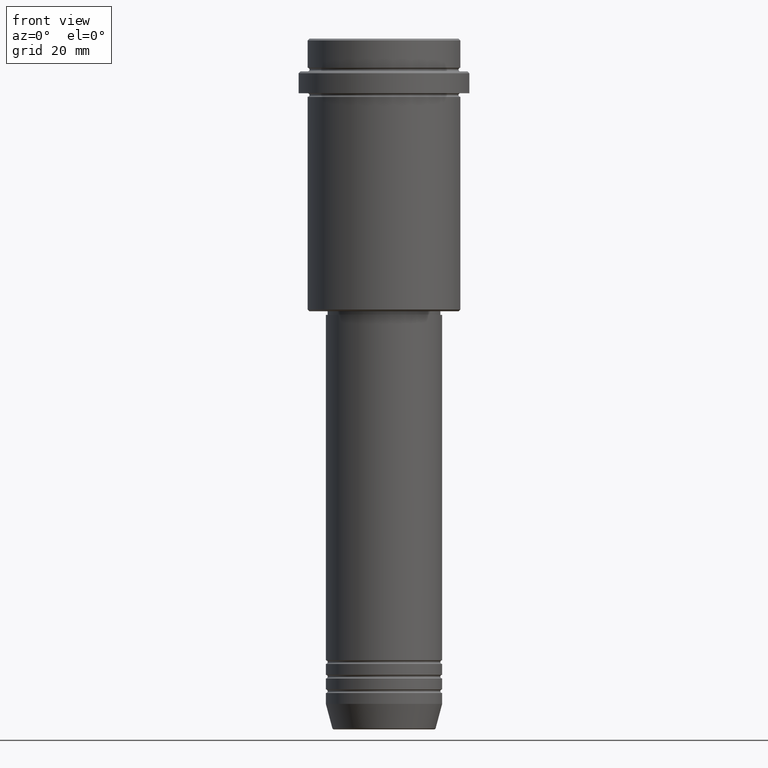
[diagram: clean part render]
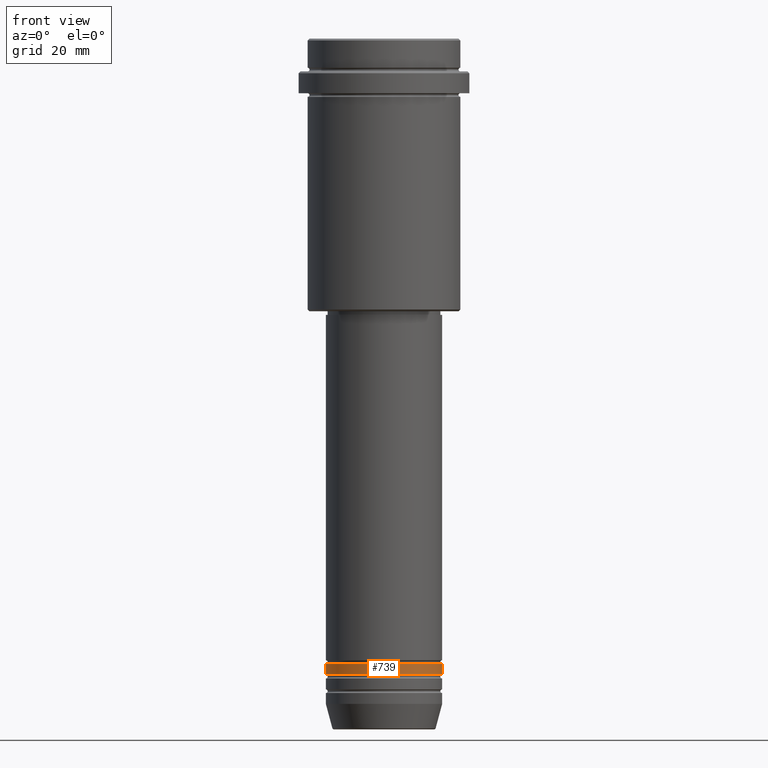
[diagram: same view with one face highlighted and labeled with its STEP entity id]
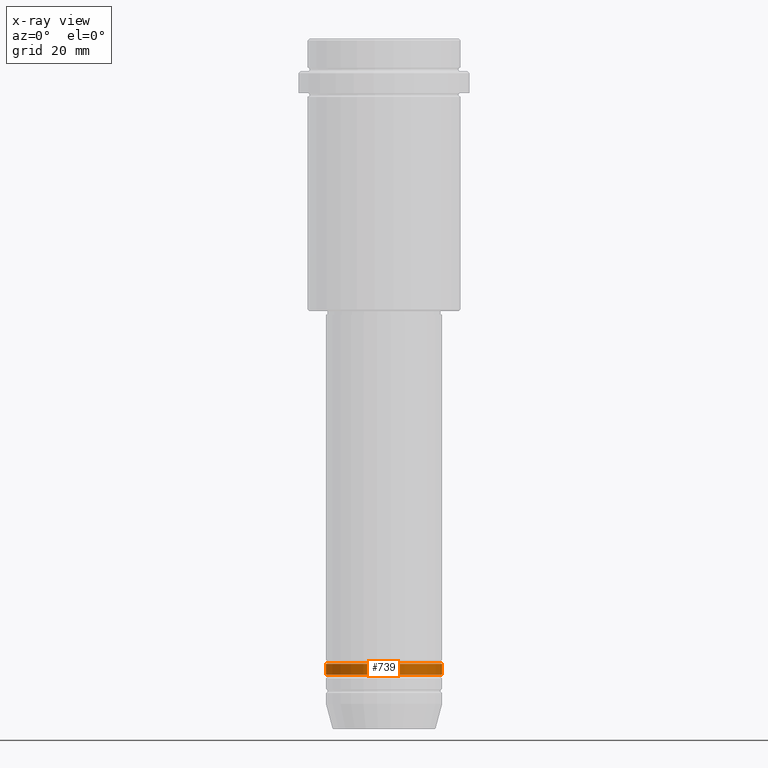
[diagram: x-ray of the same camera — body ghosted, the highlighted face saturated]
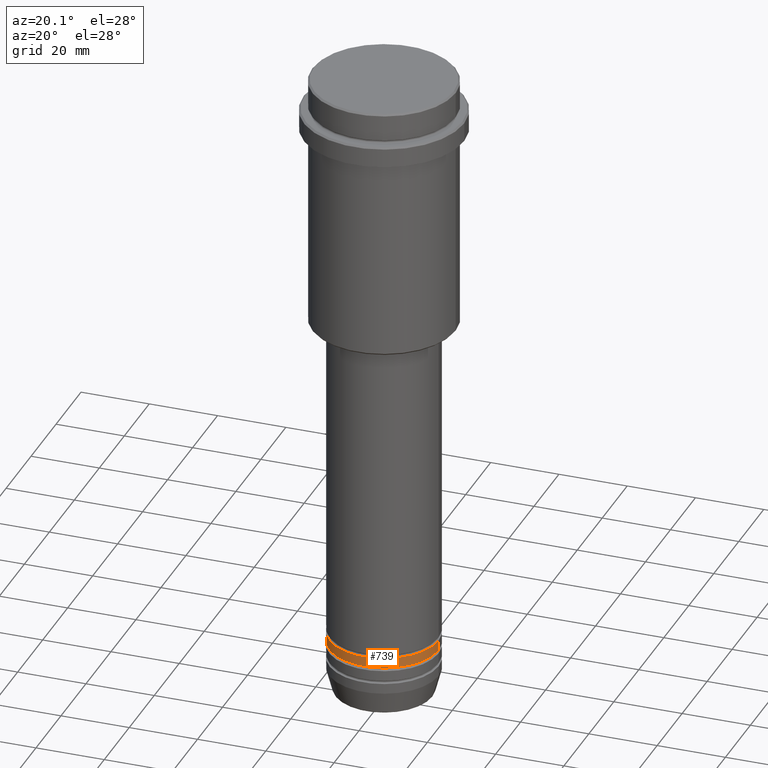
[diagram: same view with one face highlighted and labeled with its STEP entity id]
A machine part, front view. The second image highlights one B-rep face of the part: STEP entity #739.
The next image is the same camera in x-ray: the body ghosted, the highlighted face saturated — about 0% of this face is hidden behind the body in this view.
A second angle (auxiliary view) of the same face is appended — the face is thin or edge-on in the first view.
In plain terms, the highlighted cylindrical surface (partial cylindrical patch) has radius 16 mm, axis along (-0, -0, 1).
Its self-contained STEP definition (entity closure, byte-faithful):
#48 = CARTESIAN_POINT ( 'NONE',  ( -16.00000000000000000, 1.959434878635765131E-15, 0.000000000000000000 ) ) ;
#80 = EDGE_LOOP ( 'NONE', ( #947, #1416, #840, #236 ) ) ;
#84 = AXIS2_PLACEMENT_3D ( 'NONE', #976, #1088, #533 ) ;
#93 = CARTESIAN_POINT ( 'NONE',  ( 16.00000000000000000, 0.000000000000000000, -171.9999999999998863 ) ) ;
#118 = LINE ( 'NONE', #1124, #1112 ) ;
#148 = DIRECTION ( 'NONE',  ( -0.000000000000000000, -0.000000000000000000, 1.000000000000000000 ) ) ;
#175 = EDGE_CURVE ( 'NONE', #378, #1328, #863, .T. ) ;
#204 = EDGE_CURVE ( 'NONE', #378, #332, #1265, .T. ) ;
#236 = ORIENTED_EDGE ( 'NONE', *, *, #651, .F. ) ;
#239 = VERTEX_POINT ( 'NONE', #93 ) ;
#332 = VERTEX_POINT ( 'NONE', #747 ) ;
#378 = VERTEX_POINT ( 'NONE', #565 ) ;
#454 = EDGE_CURVE ( 'NONE', #1328, #239, #118, .T. ) ;
#532 = AXIS2_PLACEMENT_3D ( 'NONE', #607, #724, #1163 ) ;
#533 = DIRECTION ( 'NONE',  ( 1.000000000000000000, 0.000000000000000000, 0.000000000000000000 ) ) ;
#565 = CARTESIAN_POINT ( 'NONE',  ( -16.00000000000000000, 1.959434878635765131E-15, -174.9999999999998863 ) ) ;
#607 = CARTESIAN_POINT ( 'NONE',  ( 0.000000000000000000, 0.000000000000000000, -171.9999999999998863 ) ) ;
#651 = EDGE_CURVE ( 'NONE', #332, #239, #1167, .T. ) ;
#652 = FACE_OUTER_BOUND ( 'NONE', #80, .T. ) ;
#719 = DIRECTION ( 'NONE',  ( 1.000000000000000000, 0.000000000000000000, 0.000000000000000000 ) ) ;
#724 = DIRECTION ( 'NONE',  ( -0.000000000000000000, -0.000000000000000000, 1.000000000000000000 ) ) ;
#737 = DIRECTION ( 'NONE',  ( -0.000000000000000000, -0.000000000000000000, 1.000000000000000000 ) ) ;
#739 = ADVANCED_FACE ( 'NONE', ( #652 ), #1179, .T. ) ;
#747 = CARTESIAN_POINT ( 'NONE',  ( -16.00000000000000000, 1.959434878635765131E-15, -171.9999999999998863 ) ) ;
#840 = ORIENTED_EDGE ( 'NONE', *, *, #454, .T. ) ;
#863 = CIRCLE ( 'NONE', #1007, 16.00000000000000000 ) ;
#909 = VECTOR ( 'NONE', #1245, 1000.000000000000000 ) ;
#934 = CARTESIAN_POINT ( 'NONE',  ( 0.000000000000000000, 0.000000000000000000, -174.9999999999998863 ) ) ;
#947 = ORIENTED_EDGE ( 'NONE', *, *, #204, .F. ) ;
#976 = CARTESIAN_POINT ( 'NONE',  ( 0.000000000000000000, 0.000000000000000000, 0.000000000000000000 ) ) ;
#1007 = AXIS2_PLACEMENT_3D ( 'NONE', #934, #737, #719 ) ;
#1088 = DIRECTION ( 'NONE',  ( -0.000000000000000000, -0.000000000000000000, 1.000000000000000000 ) ) ;
#1112 = VECTOR ( 'NONE', #148, 1000.000000000000000 ) ;
#1124 = CARTESIAN_POINT ( 'NONE',  ( 16.00000000000000000, 0.000000000000000000, 0.000000000000000000 ) ) ;
#1163 = DIRECTION ( 'NONE',  ( 1.000000000000000000, 0.000000000000000000, 0.000000000000000000 ) ) ;
#1167 = CIRCLE ( 'NONE', #532, 16.00000000000000000 ) ;
#1179 = CYLINDRICAL_SURFACE ( 'NONE', #84, 16.00000000000000000 ) ;
#1245 = DIRECTION ( 'NONE',  ( -0.000000000000000000, -0.000000000000000000, 1.000000000000000000 ) ) ;
#1265 = LINE ( 'NONE', #48, #909 ) ;
#1328 = VERTEX_POINT ( 'NONE', #1338 ) ;
#1338 = CARTESIAN_POINT ( 'NONE',  ( 16.00000000000000000, 0.000000000000000000, -174.9999999999998863 ) ) ;
#1416 = ORIENTED_EDGE ( 'NONE', *, *, #175, .T. ) ;